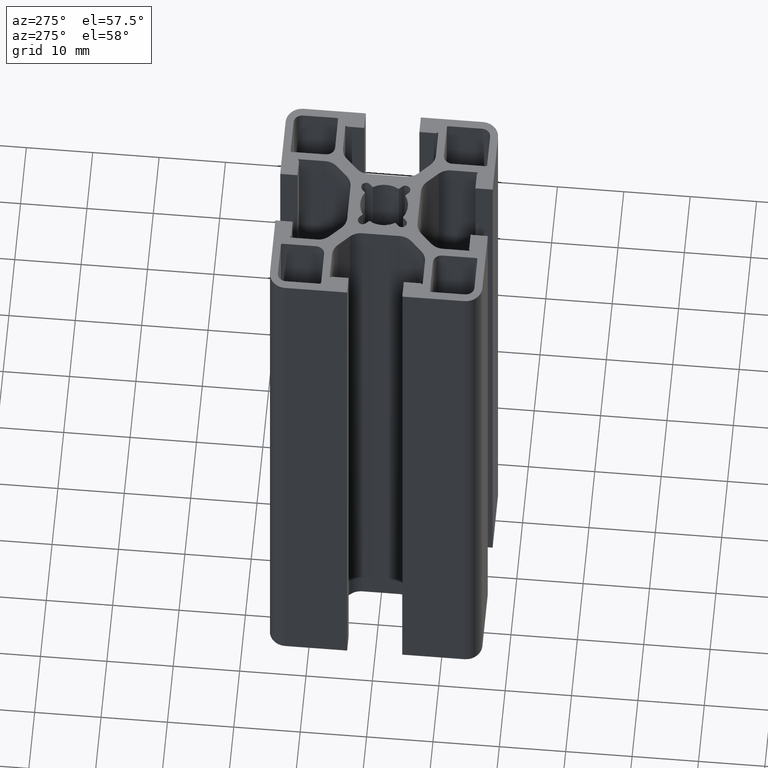
[diagram: clean part render]
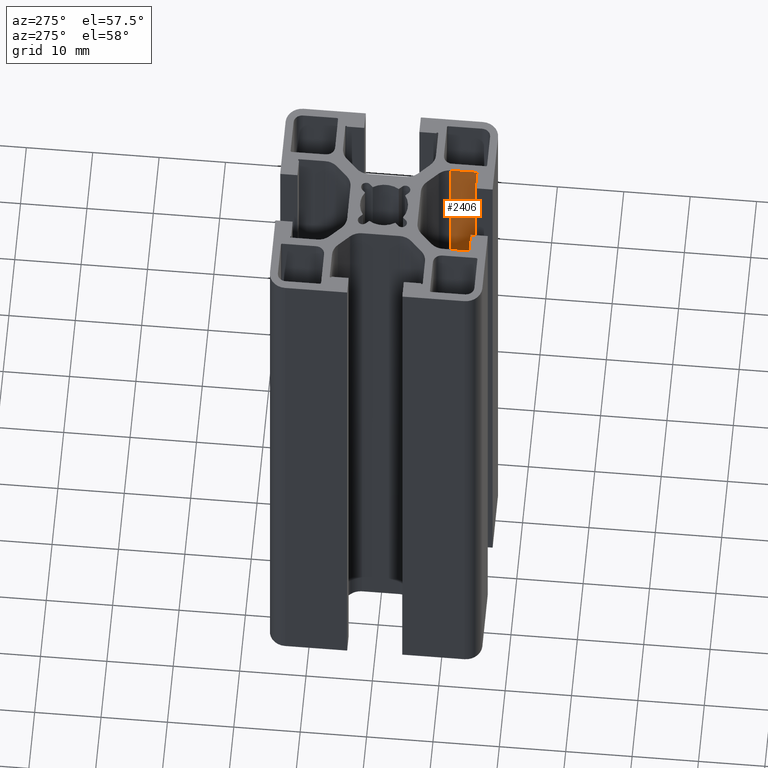
[diagram: same view with one face highlighted and labeled with its STEP entity id]
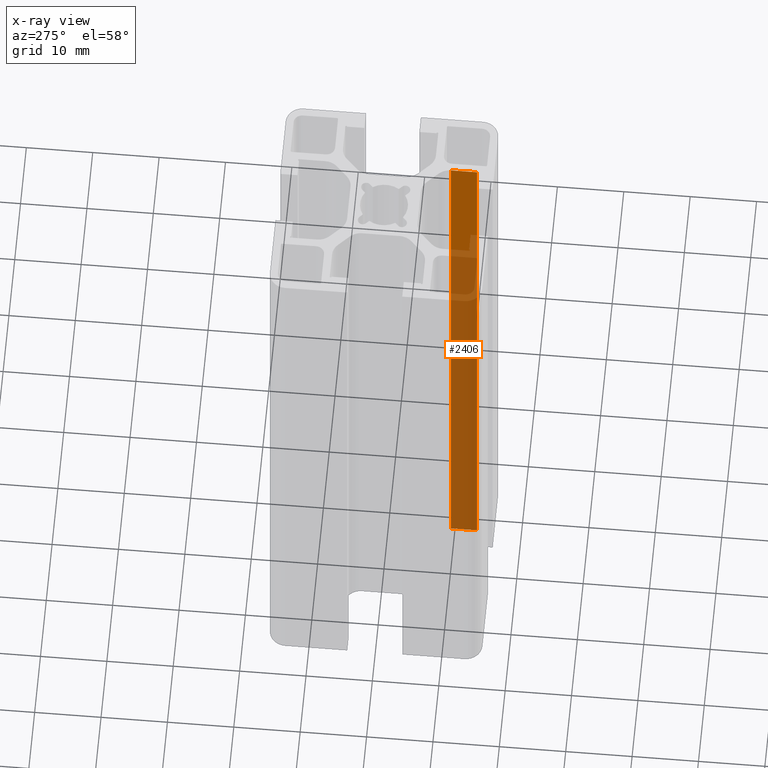
[diagram: x-ray of the same camera — body ghosted, the highlighted face saturated]
A machine part, auxiliary view. The second image highlights one B-rep face of the part: STEP entity #2406.
The next image is the same camera in x-ray: the body ghosted, the highlighted face saturated — about 79% of this face is hidden behind the body in this view.
In plain terms, the highlighted planar face has unit normal (-1, 0, 0).
Its self-contained STEP definition (entity closure, byte-faithful):
#250=FACE_OUTER_BOUND('',#372,.T.);
#372=EDGE_LOOP('',(#1823,#1824,#1825,#1826));
#578=LINE('',#3814,#834);
#579=LINE('',#3817,#835);
#580=LINE('',#3819,#836);
#581=LINE('',#3820,#837);
#834=VECTOR('',#3098,100.);
#835=VECTOR('',#3101,3.9502525);
#836=VECTOR('',#3102,3.9502525);
#837=VECTOR('',#3103,100.);
#1085=VERTEX_POINT('',#3810);
#1086=VERTEX_POINT('',#3812);
#1087=VERTEX_POINT('',#3816);
#1088=VERTEX_POINT('',#3818);
#1394=EDGE_CURVE('',#1085,#1086,#578,.T.);
#1395=EDGE_CURVE('',#1087,#1085,#579,.T.);
#1396=EDGE_CURVE('',#1088,#1086,#580,.T.);
#1397=EDGE_CURVE('',#1087,#1088,#581,.T.);
#1823=ORIENTED_EDGE('',*,*,#1395,.T.);
#1824=ORIENTED_EDGE('',*,*,#1394,.T.);
#1825=ORIENTED_EDGE('',*,*,#1396,.F.);
#1826=ORIENTED_EDGE('',*,*,#1397,.F.);
#2304=PLANE('',#2594);
#2406=ADVANCED_FACE('',(#250),#2304,.T.);
#2594=AXIS2_PLACEMENT_3D('',#3815,#3099,#3100);
#3098=DIRECTION('',(0.,0.,1.));
#3099=DIRECTION('center_axis',(-1.,0.,0.));
#3100=DIRECTION('ref_axis',(0.,-1.,0.));
#3101=DIRECTION('',(0.,-1.,0.));
#3102=DIRECTION('',(0.,-1.,0.));
#3103=DIRECTION('',(0.,0.,1.));
#3810=CARTESIAN_POINT('',(6.9999935861,-13.4000021639,0.));
#3812=CARTESIAN_POINT('',(6.9999935861,-13.4000021639,100.));
#3814=CARTESIAN_POINT('',(6.9999935861,-13.4000021639,0.));
#3815=CARTESIAN_POINT('Origin',(6.9999935861,-9.44974966390005,0.));
#3816=CARTESIAN_POINT('',(6.9999935861,-9.44974966390005,0.));
#3817=CARTESIAN_POINT('',(6.9999935861,-9.44974966390005,0.));
#3818=CARTESIAN_POINT('',(6.9999935861,-9.44974966390005,100.));
#3819=CARTESIAN_POINT('',(6.9999935861,-9.44974966390005,100.));
#3820=CARTESIAN_POINT('',(6.9999935861,-9.44974966390005,0.));